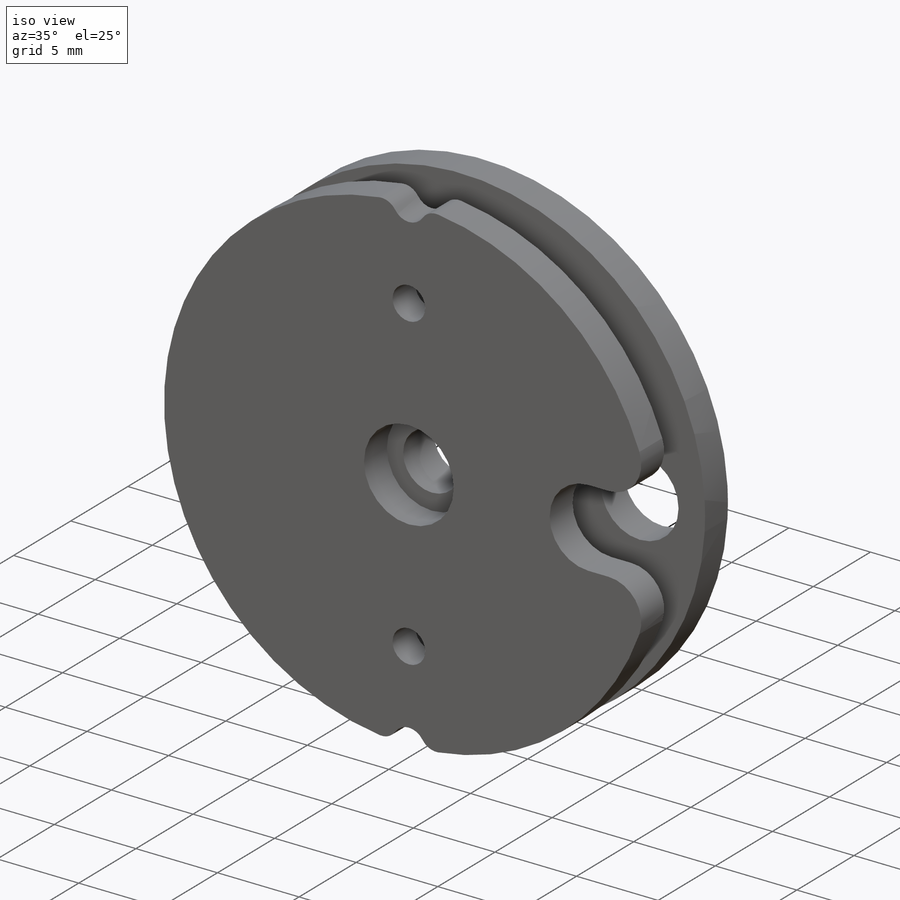
[diagram: iso view]
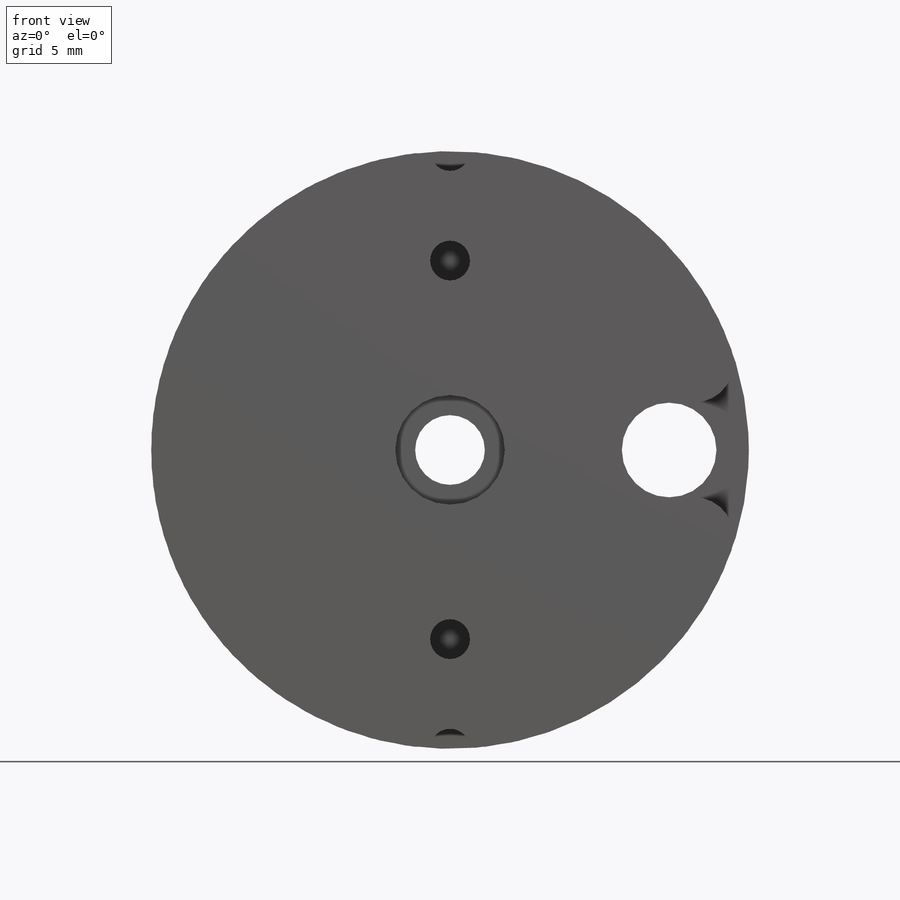
[diagram: front view]
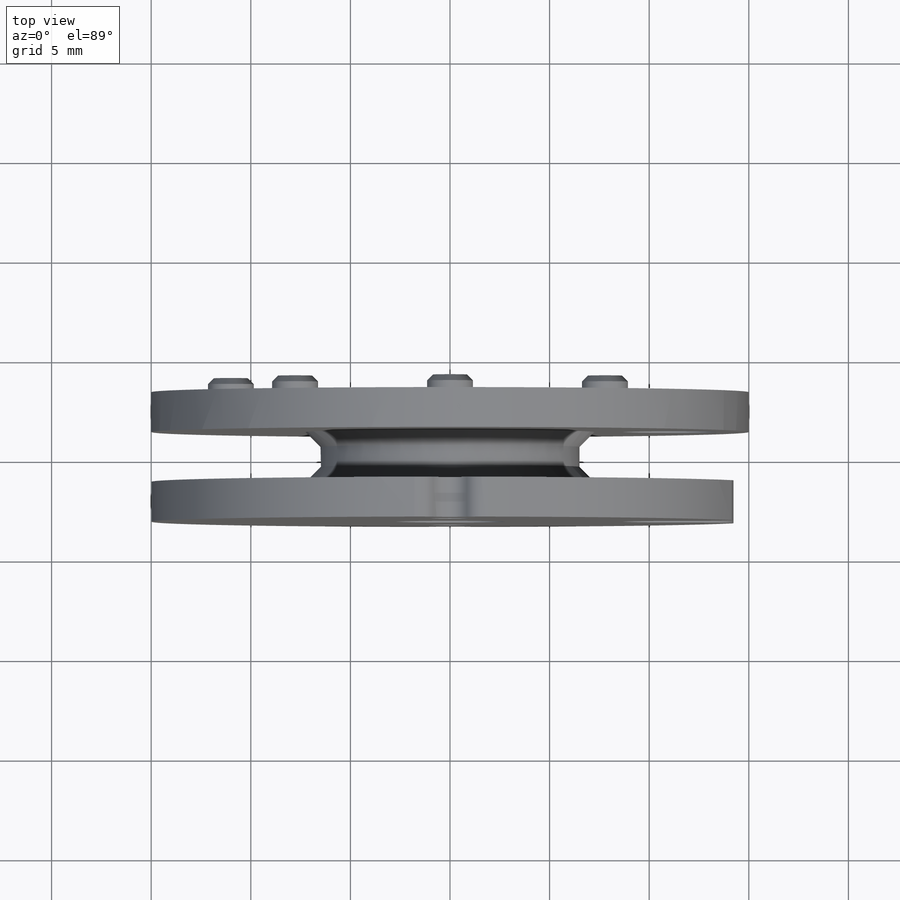
[diagram: top view]
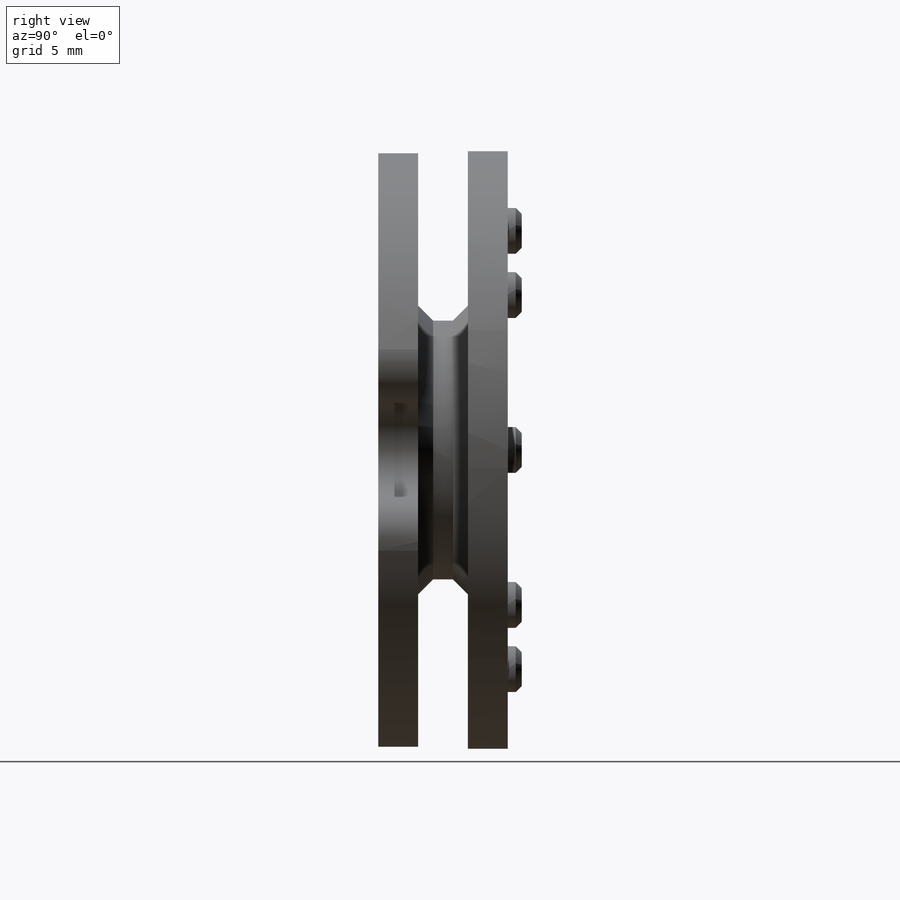
[diagram: right view]
SOLIDWORKS PART (.sldprt)
format: sldprt  version: not decoded by parser v0  size: 321,024 bytes
history: native  units: mm
features: sketch x9, cut_extrude x7, extrude x2, fillet x2, chamfer x2, material x1 (+12 scaffold rows collapsed)
feature tree (35):
  scaffold x12  (default folders/planes/origin — collapsed)
  material  "ABS"
  sketch  "Sketch1"  dims[D1=30.0mm]
  extrude  "Body"  Depth=6.5mm
  sketch  "Sketch2"  dims[D1=13.0mm]
  cut_extrude  "Pulley Clearance"  Depth=2.5mm
  sketch  "Sketch3"  dims[D1=3.5mm]
  cut_extrude  "Main Bolt Through Hole"  [1 undecoded]
  sketch  "Sketch4"  dims[D1=10.5mm]
  cut_extrude  "Servo Horn Clearance"  Depth=1.8mm
  sketch  "Sketch5"  dims[D1=5.5mm]
  cut_extrude  "Main Bolt Clearance"  Depth=2mm
  sketch  "Sketch6"  dims[c1.D1=4.75mm c1.D2=4.75mm c2.D1=~15.051709mm c2.D2=11.0mm]
  cut_extrude  "Horn Attachment Holes"  [1 undecoded]
  sketch  "Sketch7"  dims[D1=~16.718189mm]
  cut_extrude  "Horn Attachment Clearance"  [1 undecoded]
  sketch  "Sketch8"  dims[c1.D1=2.0mm c1.D2=~2.783721mm c2.D1=~2.039661mm c2.D2=3.0mm c2.D3=~9.321051mm]
  cut_extrude  "Tendon Anchor"  [1 undecoded]
  fillet  "Contouring - Bolt"  Radius=2mm
  chamfer  "Inner Chamfer"  Distance=0.75mm Angle=45deg
  fillet  "Contouring - Tendon"  Radius=1mm
  sketch  "Sketch9"  dims[D3=2.3mm D4=1.8mm D1=11.0mm D2=7.75mm D5=8.0 D6=4.0]
  extrude  "Locking Nubs"  Depth=0.7mm
  chamfer  "Nub Chamfers"  Distance=0.3mm Angle=45deg
decode coverage: 18 of 22 modeling features carry decoded parameters
note: ~ marks probable driven/reference dimensions
note: 4 parameter values undecoded
summary: no parameter record found for 4 features
note: suppression state not decoded; provenance and decode notes live in map.json
